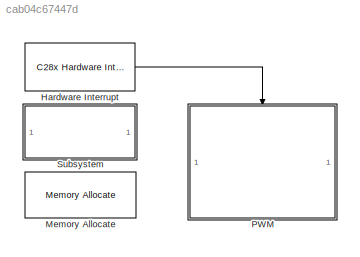
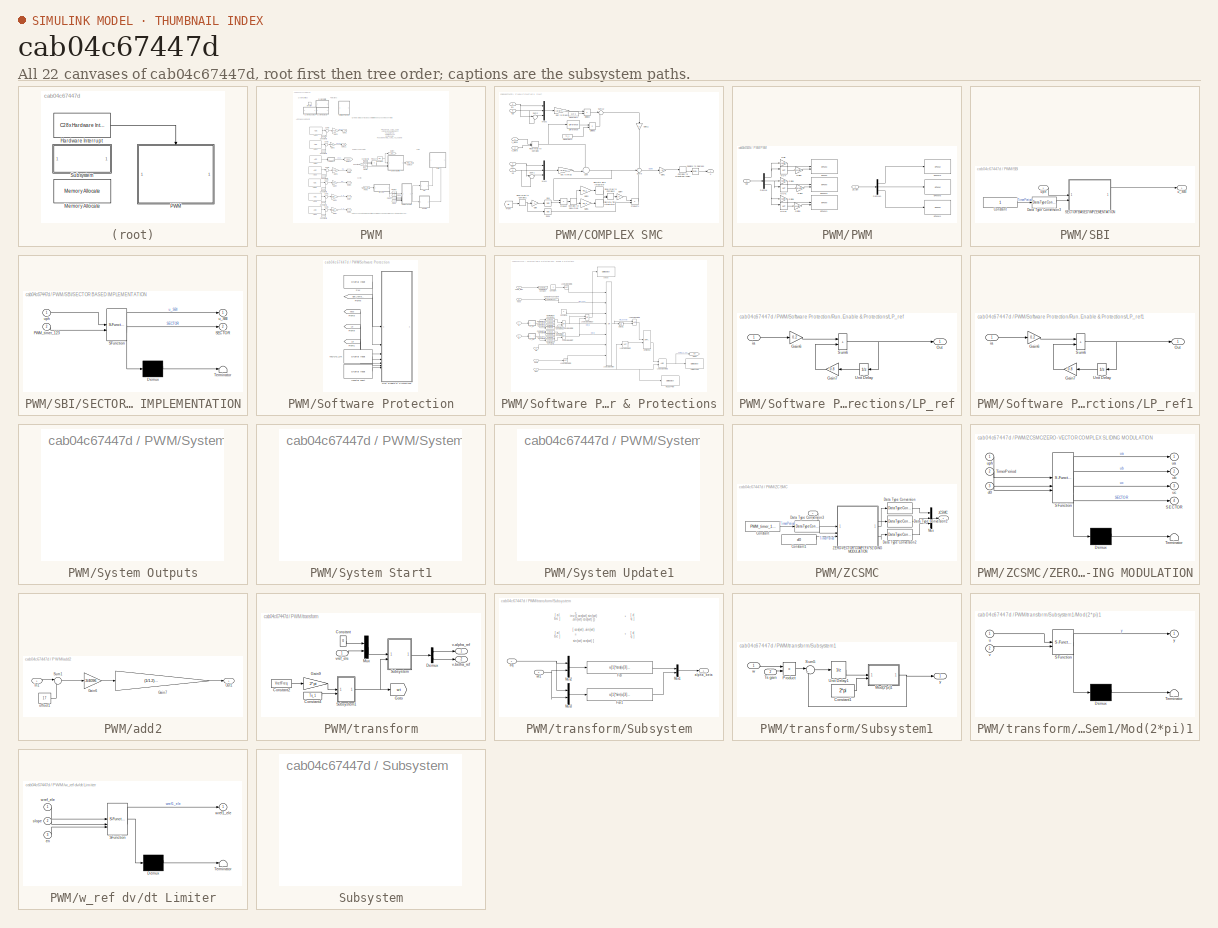
[diagram: thumbnail index - all 22 canvases of the model, root first then tree order]
MODEL slx_cab04c67447d
KIND model
CONFIG AbsTol = auto
CONFIG EnableMultiTasking = on
CONFIG FixedStep = auto
CONFIG InitFcn = iq_openloop = 2;\nvq_openloop = 0.1;\nSFOL = 1;\nFOL = 10;\nAlignment = 0;\nModulationStrategy = 1;\nDPWM1 = 1;\nDPWM2 = 1;\nda = 1;\ndb = 0;\ndc = 0;\nuab = 1;\nubc = 1;\niab = 1;\nibc = 1;\nswi = 1;\nwref_input = 100;
CONFIG MaxStep = auto
CONFIG MinStep = auto
CONFIG RelTol = 1e-3
CONFIG SampleTimeConstraint = Unconstrained
CONFIG SolverName = FixedStepAuto
CONFIG StartTime = 0.0
CONFIG StopTime = Inf
BLOCK [Reference] Hardware Interrupt  REF=c2000lib/Scheduling/C28x Hardware Interrupt
  NameLocation = top
  SourceBlock = c2000lib/Scheduling/C28x Hardware Interrupt
  SourceType = C28x Interrupt Block
BLOCK [Reference] Memory Allocate  REF=idelinklib_common/Memory Allocate
  SourceBlock = idelinklib_common/Memory Allocate
  SourceType = Memory Allocate
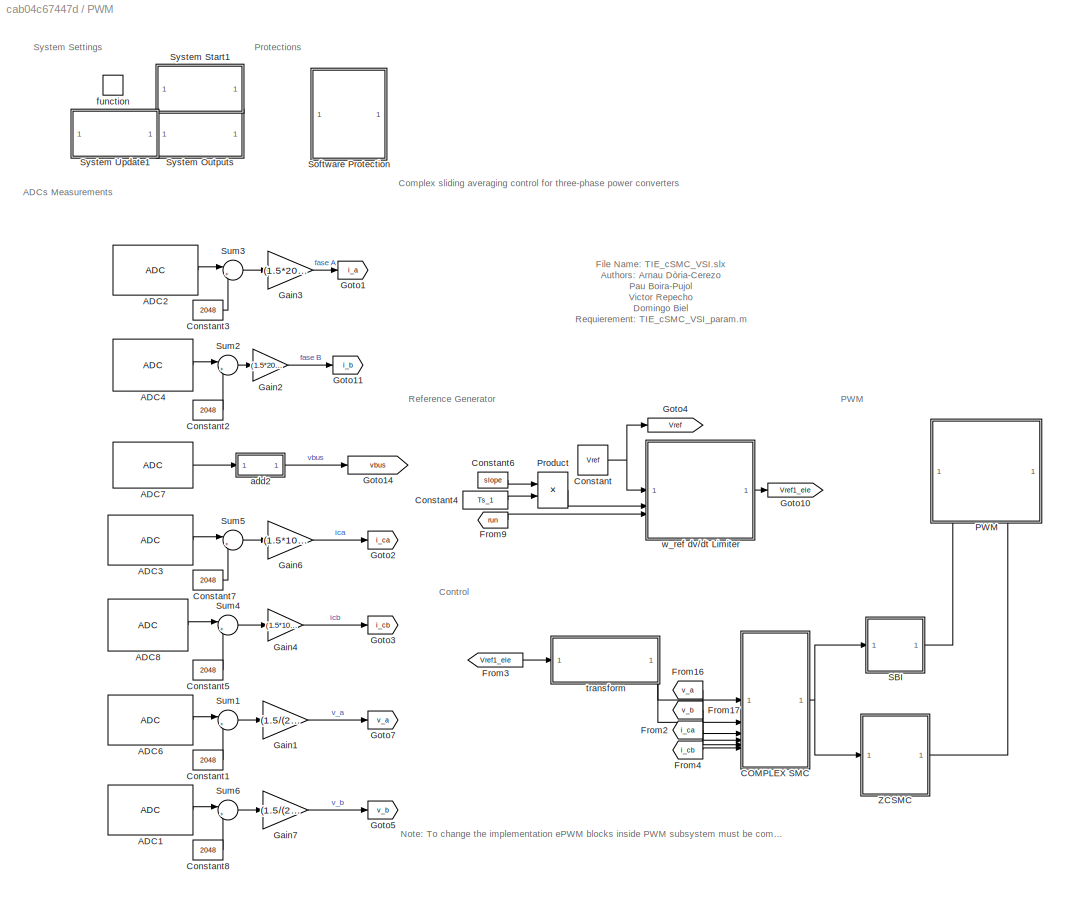
BLOCK [SubSystem] PWM
  TreatAsAtomicUnit = on
BLOCK [Reference] PWM/ADC1  REF=c2802xlib/ADC
  SourceBlock = c2802xlib/ADC
  SourceType = ADC Type 3-5
  UserDataPersistent = on
BLOCK [Reference] PWM/ADC2  REF=c2802xlib/ADC
  SourceBlock = c2802xlib/ADC
  SourceType = ADC Type 3-5
  UserDataPersistent = on
BLOCK [Reference] PWM/ADC3  REF=c2802xlib/ADC
  SourceBlock = c2802xlib/ADC
  SourceType = ADC Type 3-5
  UserDataPersistent = on
BLOCK [Reference] PWM/ADC4  REF=c2802xlib/ADC
  SourceBlock = c2802xlib/ADC
  SourceType = ADC Type 3-5
  UserDataPersistent = on
BLOCK [Reference] PWM/ADC6  REF=c2802xlib/ADC
  SourceBlock = c2802xlib/ADC
  SourceType = ADC Type 3-5
  UserDataPersistent = on
BLOCK [Reference] PWM/ADC7  REF=c2802xlib/ADC
  SourceBlock = c2802xlib/ADC
  SourceType = ADC Type 3-5
  UserDataPersistent = on
BLOCK [Reference] PWM/ADC8  REF=c2802xlib/ADC
  SourceBlock = c2802xlib/ADC
  SourceType = ADC Type 3-5
  UserDataPersistent = on
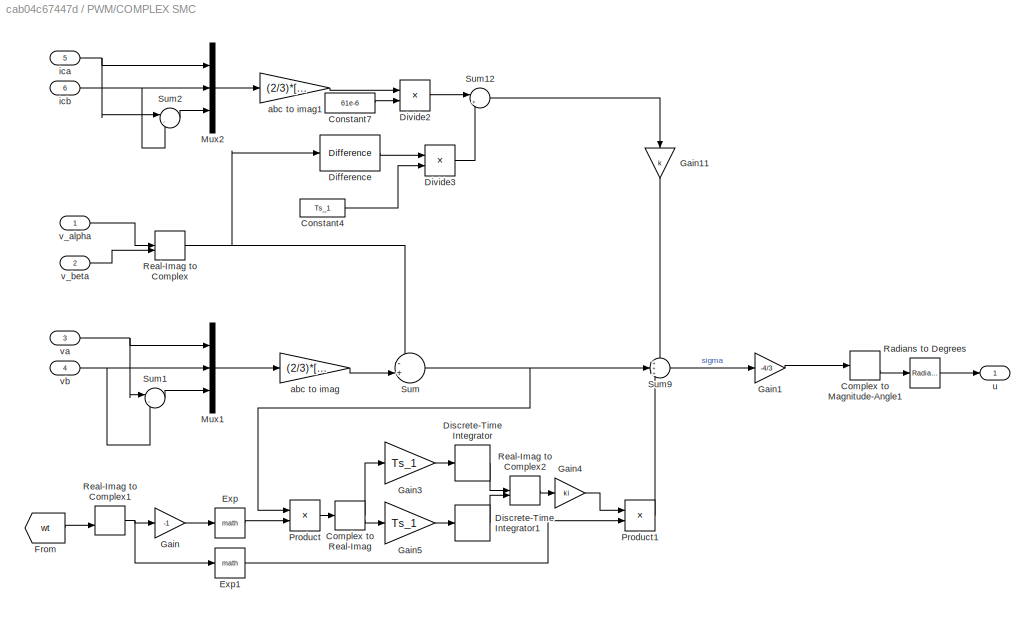
BLOCK [SubSystem] PWM/COMPLEX SMC
BLOCK [ComplexToMagnitudeAngle] PWM/COMPLEX SMC/Complex to Magnitude-Angle1
BLOCK [ComplexToRealImag] PWM/COMPLEX SMC/Complex to Real-Imag
BLOCK [Constant] PWM/COMPLEX SMC/Constant4
  OutDataTypeStr = single
  Value = Ts_1
BLOCK [Constant] PWM/COMPLEX SMC/Constant7
  OutDataTypeStr = single
  Value = 61e-6
BLOCK [Reference] PWM/COMPLEX SMC/Difference  REF=simulink/Discrete/Difference
  SourceBlock = simulink/Discrete/Difference
  SourceType = Difference
BLOCK [DiscreteIntegrator] PWM/COMPLEX SMC/Discrete-Time Integrator
  ICPrevOutput = DiscIntNeverNeededParam
  ICPrevScaledInput = DiscIntNeverNeededParam
  InitialConditionSetting = Auto
  IntegratorMethod = Accumulation: Forward Euler
  SampleTime = -1
BLOCK [DiscreteIntegrator] PWM/COMPLEX SMC/Discrete-Time Integrator1
  ICPrevOutput = DiscIntNeverNeededParam
  ICPrevScaledInput = DiscIntNeverNeededParam
  InitialConditionSetting = Auto
  IntegratorMethod = Accumulation: Forward Euler
  SampleTime = -1
BLOCK [Product] PWM/COMPLEX SMC/Divide2
  Inputs = */
BLOCK [Product] PWM/COMPLEX SMC/Divide3
  Inputs = */
BLOCK [Math] PWM/COMPLEX SMC/Exp
BLOCK [Math] PWM/COMPLEX SMC/Exp1
BLOCK [From] PWM/COMPLEX SMC/From
  GotoTag = wt
  TagVisibility = global
BLOCK [Gain] PWM/COMPLEX SMC/Gain
  Gain = -1
BLOCK [Gain] PWM/COMPLEX SMC/Gain1
  Gain = -4/3
BLOCK [Gain] PWM/COMPLEX SMC/Gain11
  Gain = k
  NameLocation = left
BLOCK [Gain] PWM/COMPLEX SMC/Gain3
  Gain = Ts_1
BLOCK [Gain] PWM/COMPLEX SMC/Gain4
  Gain = ki
BLOCK [Gain] PWM/COMPLEX SMC/Gain5
  Gain = Ts_1
BLOCK [Mux] PWM/COMPLEX SMC/Mux1
  DisplayOption = bar
  Inputs = 3
BLOCK [Mux] PWM/COMPLEX SMC/Mux2
  DisplayOption = bar
  Inputs = 3
BLOCK [Product] PWM/COMPLEX SMC/Product
BLOCK [Product] PWM/COMPLEX SMC/Product1
BLOCK [Reference] PWM/COMPLEX SMC/Radians to Degrees  REF=simulink_extras/Transformations/Radians
to Degrees
  SourceBlock = simulink_extras/Transformations/Radians\nto Degrees
  SourceType = RadiansToDegrees
BLOCK [RealImagToComplex] PWM/COMPLEX SMC/Real-Imag to Complex
BLOCK [RealImagToComplex] PWM/COMPLEX SMC/Real-Imag to Complex1
BLOCK [RealImagToComplex] PWM/COMPLEX SMC/Real-Imag to Complex2
BLOCK [Sum] PWM/COMPLEX SMC/Sum
  Inputs = -+|
BLOCK [Sum] PWM/COMPLEX SMC/Sum1
  Inputs = |--
BLOCK [Sum] PWM/COMPLEX SMC/Sum12
  AccumDataTypeStr = single
  Inputs = |+-
  OutDataTypeStr = single
BLOCK [Sum] PWM/COMPLEX SMC/Sum2
  Inputs = |--
BLOCK [Sum] PWM/COMPLEX SMC/Sum9
  AccumDataTypeStr = single
  Inputs = +++
  OutDataTypeStr = single
BLOCK [Gain] PWM/COMPLEX SMC/abc to imag
  Gain = (2/3)*[1,-0.5+1i*sqrt(3)/2,-0.5-1i*sqrt(3)/2]
  Multiplication = Matrix(K*u) (u vector)
BLOCK [Gain] PWM/COMPLEX SMC/abc to imag1
  Gain = (2/3)*[1,-0.5+1i*sqrt(3)/2,-0.5-1i*sqrt(3)/2]
  Multiplication = Matrix(K*u) (u vector)
BLOCK [Inport] PWM/COMPLEX SMC/ica
  Port = 5
BLOCK [Inport] PWM/COMPLEX SMC/icb
  Port = 6
BLOCK [Outport] PWM/COMPLEX SMC/u
BLOCK [Inport] PWM/COMPLEX SMC/v_alpha
BLOCK [Inport] PWM/COMPLEX SMC/v_beta
  Port = 2
BLOCK [Inport] PWM/COMPLEX SMC/va
  Port = 3
BLOCK [Inport] PWM/COMPLEX SMC/vb
  Port = 4
BLOCK [Constant] PWM/Constant
  OutDataTypeStr = single
  Value = Vref
BLOCK [Constant] PWM/Constant1
  OutDataTypeStr = single
  Value = 2048
BLOCK [Constant] PWM/Constant2
  OutDataTypeStr = single
  Value = 2048
BLOCK [Constant] PWM/Constant3
  OutDataTypeStr = single
  Value = 2048
BLOCK [Constant] PWM/Constant4
  OutDataTypeStr = single
  Value = Ts_1
BLOCK [Constant] PWM/Constant5
  OutDataTypeStr = single
  Value = 2048
BLOCK [Constant] PWM/Constant6
  OutDataTypeStr = single
  SampleTime = -1
  Value = slope
BLOCK [Constant] PWM/Constant7
  OutDataTypeStr = single
  Value = 2048
BLOCK [Constant] PWM/Constant8
  OutDataTypeStr = single
  Value = 2048
BLOCK [From] PWM/From16
  GotoTag = v_a
  TagVisibility = global
BLOCK [From] PWM/From17
  GotoTag = v_b
  TagVisibility = global
BLOCK [From] PWM/From2
  GotoTag = i_ca
  TagVisibility = global
BLOCK [From] PWM/From3
  GotoTag = Vref1_ele
  TagVisibility = global
BLOCK [From] PWM/From4
  GotoTag = i_cb
  TagVisibility = global
BLOCK [From] PWM/From9
  GotoTag = run
  TagVisibility = global
BLOCK [Gain] PWM/Gain1
  Gain = (1.5/(2048*0.6*8.2*(265/(265+6*47e3))))
  OutDataTypeStr = single
  RndMeth = Simplest
BLOCK [Gain] PWM/Gain2
  Gain = (1.5*2000/(2048*0.6*83))
  OutDataTypeStr = single
  RndMeth = Simplest
BLOCK [Gain] PWM/Gain3
  Gain = (1.5*2000/(2048*0.6*83))
  OutDataTypeStr = single
  RndMeth = Simplest
BLOCK [Gain] PWM/Gain4
  Gain = (1.5*1000/(2048*0.6*100))/2
  OutDataTypeStr = single
  RndMeth = Simplest
BLOCK [Gain] PWM/Gain6
  Gain = (1.5*1000/(2048*0.6*100))/2
  OutDataTypeStr = single
  RndMeth = Simplest
BLOCK [Gain] PWM/Gain7
  Gain = (1.5/(2048*0.6*8.2*(265/(265+6*47e3))))
  OutDataTypeStr = single
  RndMeth = Simplest
BLOCK [Goto] PWM/Goto1
  GotoTag = i_a
  TagVisibility = global
BLOCK [Goto] PWM/Goto10
  GotoTag = Vref1_ele
  TagVisibility = global
BLOCK [Goto] PWM/Goto11
  GotoTag = i_b
  TagVisibility = global
BLOCK [Goto] PWM/Goto14
  GotoTag = vbus
  TagVisibility = global
BLOCK [Goto] PWM/Goto2
  GotoTag = i_ca
  TagVisibility = global
BLOCK [Goto] PWM/Goto3
  GotoTag = i_cb
  TagVisibility = global
BLOCK [Goto] PWM/Goto4
  GotoTag = Vref
  TagVisibility = global
BLOCK [Goto] PWM/Goto5
  GotoTag = v_b
  TagVisibility = global
BLOCK [Goto] PWM/Goto7
  GotoTag = v_a
  TagVisibility = global
BLOCK [SubSystem] PWM/PWM
  PortSchema = {"entries":[{"content":{"sides":[{"content":{},"type":"ConnectorPlacement.EquallySpacedRectSide","uuid":"a5acabf5-e743-4773-bd0a-f39da237c21c"},{"content":{"side":"RIGHT"},"type":"ConnectorPlacement.EquallySpacedRectSide","uuid":"63dbd969-65f2-4854-aa43-6cc57aeb62a1"},{"content":{"side":"TOP"},"type":"ConnectorPlacement.EquallySpacedRectSide","uuid":"2315750b-b108-4f1f-8e88-2176e5b35533"},{"conten...<+331ch>
BLOCK [Demux] PWM/PWM/Demux
  Outputs = 3
BLOCK [Demux] PWM/PWM/Demux1
  Outputs = 3
BLOCK [Gain] PWM/PWM/Gain
  Gain = PWM_timer_123*2+2
  OutDataTypeStr = uint16
BLOCK [Gain] PWM/PWM/Gain5
  Gain = PWM_timer_123*2+2
  OutDataTypeStr = uint16
BLOCK [Gain] PWM/PWM/Gain6
  Gain = PWM_timer_123*2+2
  OutDataTypeStr = uint16
BLOCK [Gain] PWM/PWM/Gain7
  Gain = PWM_timer_123*2+2
  OutDataTypeStr = uint16
BLOCK [Gain] PWM/PWM/Gain8
  Gain = PWM_timer_123*2+2
  OutDataTypeStr = uint16
BLOCK [Gain] PWM/PWM/Gain9
  Gain = PWM_timer_123*2+2
  OutDataTypeStr = uint16
BLOCK [Logic] PWM/PWM/NOT
  AllPortsSameDT = off
  IconShape = distinctive
  Operator = NOT
  OutDataTypeStr = boolean
BLOCK [Logic] PWM/PWM/NOT1
  AllPortsSameDT = off
  IconShape = distinctive
  Operator = NOT
  OutDataTypeStr = boolean
BLOCK [Logic] PWM/PWM/NOT2
  AllPortsSameDT = off
  IconShape = distinctive
  Operator = NOT
  OutDataTypeStr = boolean
BLOCK [Inport] PWM/PWM/ZCSM
  Port = 2
BLOCK [Reference] PWM/PWM/ePWM  REF=c2802xlib/ePWM
  SourceBlock = c2802xlib/ePWM
  SourceType = ePWM Type 1-4
  UserDataPersistent = on
BLOCK [Reference] PWM/PWM/ePWM1  REF=c2802xlib/ePWM
  SourceBlock = c2802xlib/ePWM
  SourceType = ePWM Type 1-4
  UserDataPersistent = on
BLOCK [Reference] PWM/PWM/ePWM2  REF=c2802xlib/ePWM
  SourceBlock = c2802xlib/ePWM
  SourceType = ePWM Type 1-4
  UserDataPersistent = on
BLOCK [Reference] PWM/PWM/ePWM3  REF=c2802xlib/ePWM
  Commented = on
  SourceBlock = c2802xlib/ePWM
  SourceType = ePWM Type 1-4
  UserDataPersistent = on
BLOCK [Reference] PWM/PWM/ePWM4  REF=c2802xlib/ePWM
  Commented = on
  SourceBlock = c2802xlib/ePWM
  SourceType = ePWM Type 1-4
  UserDataPersistent = on
BLOCK [Reference] PWM/PWM/ePWM5  REF=c2802xlib/ePWM
  Commented = on
  SourceBlock = c2802xlib/ePWM
  SourceType = ePWM Type 1-4
  UserDataPersistent = on
BLOCK [Inport] PWM/PWM/sbi
BLOCK [Product] PWM/Product
BLOCK [SubSystem] PWM/SBI
BLOCK [Constant] PWM/SBI/Constant
  OutDataTypeStr = uint16
BLOCK [DataTypeConversion] PWM/SBI/Data Type Conversion3
  Commented = through
  OutDataTypeStr = single
  SaturateOnIntegerOverflow = off
BLOCK [SubSystem] PWM/SBI/SECTOR BASED IMPLEMENTATION
  ErrorFcn = Stateflow.Translate.translate
  LibrarySourceBlock = simulink/User-Defined\nFunctions/MATLAB Function
  PermitHierarchicalResolution = ExplicitOnly
  SFBlockType = MATLAB Function
  TreatAsAtomicUnit = on
BLOCK [Demux] PWM/SBI/SECTOR BASED IMPLEMENTATION/ Demux 
  Outputs = 1
BLOCK [S-Function] PWM/SBI/SECTOR BASED IMPLEMENTATION/ SFunction 
  EnableBusSupport = on
  FunctionName = sf_sfun
  PortCounts = [2 3]
  SFcnIsStateOwnerBlock = off
  SFunctionDeploymentMode = off
  Tag = Stateflow S-Function 1
BLOCK [Terminator] PWM/SBI/SECTOR BASED IMPLEMENTATION/ Terminator 
BLOCK [Inport] PWM/SBI/SECTOR BASED IMPLEMENTATION/PWM_timer_123
  Port = 2
BLOCK [Outport] PWM/SBI/SECTOR BASED IMPLEMENTATION/SECTOR
  Port = 2
BLOCK [Outport] PWM/SBI/SECTOR BASED IMPLEMENTATION/u_SBI
BLOCK [Inport] PWM/SBI/SECTOR BASED IMPLEMENTATION/uph
BLOCK [Outport] PWM/SBI/u_SBI
  NameLocation = top
BLOCK [Inport] PWM/SBI/uph
BLOCK [SubSystem] PWM/Software Protection
BLOCK [From] PWM/Software Protection/From1
  GotoTag = i_b
  TagVisibility = global
BLOCK [From] PWM/Software Protection/From3
  GotoTag = vbus
  TagVisibility = global
BLOCK [From] PWM/Software Protection/From5
  Commented = on
  GotoTag = igbt_temp_F
  TagVisibility = global
BLOCK [From] PWM/Software Protection/From9
  GotoTag = i_a
  TagVisibility = global
BLOCK [Reference] PWM/Software Protection/Inverter Fault  REF=c2837xDlib/Digital Input
  SourceBlock = c2837xDlib/Digital Input
  SourceType = F2837x GPIO Digital Input
  UserDataPersistent = on
BLOCK [SubSystem] PWM/Software Protection/Run. Enable & Protections
  NameLocation = top
BLOCK [Reference] PWM/Software Protection/Run. Enable & Protections/Compare To Constant  REF=simulink/Logic and Bit
Operations/Compare
To Constant
  Commented = on
  SourceBlock = simulink/Logic and Bit\nOperations/Compare\nTo Constant
  SourceType = Compare To Constant
BLOCK [Reference] PWM/Software Protection/Run. Enable & Protections/Compare To Constant1  REF=simulink/Logic and Bit
Operations/Compare
To Constant
  SourceBlock = simulink/Logic and Bit\nOperations/Compare\nTo Constant
  SourceType = Compare To Constant
BLOCK [Reference] PWM/Software Protection/Run. Enable & Protections/Compare To Constant10  REF=simulink/Logic and Bit
Operations/Compare
To Constant
  SourceBlock = simulink/Logic and Bit\nOperations/Compare\nTo Constant
  SourceType = Compare To Constant
BLOCK [Reference] PWM/Software Protection/Run. Enable & Protections/Compare To Constant11  REF=simulink/Logic and Bit
Operations/Compare
To Constant
  SourceBlock = simulink/Logic and Bit\nOperations/Compare\nTo Constant
  SourceType = Compare To Constant
BLOCK [Reference] PWM/Software Protection/Run. Enable & Protections/Compare To Constant3  REF=simulink/Logic and Bit
Operations/Compare
To Constant
  SourceBlock = simulink/Logic and Bit\nOperations/Compare\nTo Constant
  SourceType = Compare To Constant
BLOCK [Reference] PWM/Software Protection/Run. Enable & Protections/Compare To Constant4  REF=simulink/Logic and Bit
Operations/Compare
To Constant
  SourceBlock = simulink/Logic and Bit\nOperations/Compare\nTo Constant
  SourceType = Compare To Constant
BLOCK [Reference] PWM/Software Protection/Run. Enable & Protections/Compare To Constant5  REF=simulink/Logic and Bit
Operations/Compare
To Constant
  SourceBlock = simulink/Logic and Bit\nOperations/Compare\nTo Constant
  SourceType = Compare To Constant
BLOCK [Reference] PWM/Software Protection/Run. Enable & Protections/Compare To Constant7  REF=simulink/Logic and Bit
Operations/Compare
To Constant
  SourceBlock = simulink/Logic and Bit\nOperations/Compare\nTo Constant
  SourceType = Compare To Constant
BLOCK [Reference] PWM/Software Protection/Run. Enable & Protections/Compare To Constant8  REF=simulink/Logic and Bit
Operations/Compare
To Constant
  SourceBlock = simulink/Logic and Bit\nOperations/Compare\nTo Constant
  SourceType = Compare To Constant
BLOCK [Reference] PWM/Software Protection/Run. Enable & Protections/Compare To Constant9  REF=simulink/Logic and Bit
Operations/Compare
To Constant
  SourceBlock = simulink/Logic and Bit\nOperations/Compare\nTo Constant
  SourceType = Compare To Constant
BLOCK [Constant] PWM/Software Protection/Run. Enable & Protections/Constant
  OutDataTypeStr = boolean
BLOCK [Constant] PWM/Software Protection/Run. Enable & Protections/Constant1
  OutDataTypeStr = boolean
  Value = 0
BLOCK [Inport] PWM/Software Protection/Run. Enable & Protections/Fault
  Port = 7
BLOCK [Goto] PWM/Software Protection/Run. Enable & Protections/Goto6
  GotoTag = run
  TagVisibility = global
BLOCK [SubSystem] PWM/Software Protection/Run. Enable & Protections/LP_ref
BLOCK [Gain] PWM/Software Protection/Run. Enable & Protections/LP_ref/Gain6
  Gain = 0.2
  OutDataTypeStr = single
  ParamDataTypeStr = single
  RndMeth = Zero
BLOCK [Gain] PWM/Software Protection/Run. Enable & Protections/LP_ref/Gain7
  Gain = 0.8
  NameLocation = top
  OutDataTypeStr = single
  ParamDataTypeStr = single
  RndMeth = Zero
BLOCK [Outport] PWM/Software Protection/Run. Enable & Protections/LP_ref/Out
  VectorParamsAs1DForOutWhenUnconnected = off
BLOCK [Sum] PWM/Software Protection/Run. Enable & Protections/LP_ref/Sum6
  AccumDataTypeStr = single
  IconShape = rectangular
  OutDataTypeStr = int32
  RndMeth = Zero
BLOCK [UnitDelay] PWM/Software Protection/Run. Enable & Protections/LP_ref/Unit Delay
  HasFrameUpgradeWarning = on
  NameLocation = top
  SampleTime = -1
BLOCK [Inport] PWM/Software Protection/Run. Enable & Protections/LP_ref/ia
BLOCK [SubSystem] PWM/Software Protection/Run. Enable & Protections/LP_ref1
BLOCK [Gain] PWM/Software Protection/Run. Enable & Protections/LP_ref1/Gain6
  Gain = 0.2
  OutDataTypeStr = single
  ParamDataTypeStr = single
  RndMeth = Zero
BLOCK [Gain] PWM/Software Protection/Run. Enable & Protections/LP_ref1/Gain7
  Gain = 0.8
  NameLocation = top
  OutDataTypeStr = single
  ParamDataTypeStr = single
  RndMeth = Zero
BLOCK [Outport] PWM/Software Protection/Run. Enable & Protections/LP_ref1/Out
  VectorParamsAs1DForOutWhenUnconnected = off
BLOCK [Sum] PWM/Software Protection/Run. Enable & Protections/LP_ref1/Sum6
  AccumDataTypeStr = single
  IconShape = rectangular
  OutDataTypeStr = int32
  RndMeth = Zero
BLOCK [UnitDelay] PWM/Software Protection/Run. Enable & Protections/LP_ref1/Unit Delay
  HasFrameUpgradeWarning = on
  NameLocation = top
  SampleTime = -1
BLOCK [Inport] PWM/Software Protection/Run. Enable & Protections/LP_ref1/ia
BLOCK [Logic] PWM/Software Protection/Run. Enable & Protections/Logical Operator
  AllPortsSameDT = off
  Inputs = 7
  Operator = OR
  OutDataTypeStr = boolean
BLOCK [Logic] PWM/Software Protection/Run. Enable & Protections/Logical Operator1
  AllPortsSameDT = off
  OutDataTypeStr = boolean
BLOCK [Logic] PWM/Software Protection/Run. Enable & Protections/Logical Operator10
  AllPortsSameDT = off
  Operator = OR
  OutDataTypeStr = boolean
BLOCK [Logic] PWM/Software Protection/Run. Enable & Protections/Logical Operator2
  AllPortsSameDT = off
  Inputs = 1
  Operator = NOT
  OutDataTypeStr = boolean
BLOCK [Logic] PWM/Software Protection/Run. Enable & Protections/Logical Operator3
  AllPortsSameDT = off
  Inputs = 1
  Operator = NOT
  OutDataTypeStr = boolean
BLOCK [Logic] PWM/Software Protection/Run. Enable & Protections/Logical Operator4
  AllPortsSameDT = off
  OutDataTypeStr = boolean
BLOCK [Logic] PWM/Software Protection/Run. Enable & Protections/Logical Operator5
  AllPortsSameDT = off
  Inputs = 1
  Operator = NOT
  OutDataTypeStr = boolean
BLOCK [Logic] PWM/Software Protection/Run. Enable & Protections/Logical Operator6
  AllPortsSameDT = off
  Operator = OR
  OutDataTypeStr = boolean
BLOCK [Logic] PWM/Software Protection/Run. Enable & Protections/Logical Operator7
  AllPortsSameDT = off
  Operator = OR
  OutDataTypeStr = boolean
BLOCK [UnitDelay] PWM/Software Protection/Run. Enable & Protections/Output1
  HasFrameUpgradeWarning = on
  SampleTime = -1
BLOCK [Reference] PWM/Software Protection/Run. Enable & Protections/PWM123 EN  REF=c2837xDlib/Digital Output
  SourceBlock = c2837xDlib/Digital Output
  SourceType = F2837x GPIO Digital Output
  UserDataPersistent = on
BLOCK [Reference] PWM/Software Protection/Run. Enable & Protections/RESET PWM  REF=c2837xDlib/Digital Output
  SourceBlock = c2837xDlib/Digital Output
  SourceType = F2837x GPIO Digital Output
  UserDataPersistent = on
BLOCK [Inport] PWM/Software Protection/Run. Enable & Protections/Run
BLOCK [Reference] PWM/Software Protection/Run. Enable & Protections/S-R Flip-Flop  REF=simulink_extras/Flip Flops/S-R
Flip-Flop
  SourceBlock = simulink_extras/Flip Flops/S-R\nFlip-Flop
  SourceType = SRFlipFlop
BLOCK [Inport] PWM/Software Protection/Run. Enable & Protections/Temp_IGBT
  NameLocation = top
  Port = 2
BLOCK [Reference] PWM/Software Protection/Run. Enable & Protections/check  REF=c2837xDlib/Digital Output
  SourceBlock = c2837xDlib/Digital Output
  SourceType = F2837x GPIO Digital Output
  UserDataPersistent = on
BLOCK [Inport] PWM/Software Protection/Run. Enable & Protections/ia
  Port = 4
BLOCK [Inport] PWM/Software Protection/Run. Enable & Protections/ib
  Port = 5
BLOCK [Inport] PWM/Software Protection/Run. Enable & Protections/vbus
  Port = 3
BLOCK [Inport] PWM/Software Protection/Run. Enable & Protections/wd
  Port = 6
BLOCK [Reference] PWM/Software Protection/SW   REF=c2837xDlib/Digital Input
  SourceBlock = c2837xDlib/Digital Input
  SourceType = F2837x GPIO Digital Input
  UserDataPersistent = on
BLOCK [Reference] PWM/Software Protection/WDOG_OK  REF=c2837xDlib/Digital Input
  SourceBlock = c2837xDlib/Digital Input
  SourceType = F2837x GPIO Digital Input
  UserDataPersistent = on
BLOCK [Sum] PWM/Sum1
  AccumDataTypeStr = single
  Inputs = |+-
  OutDataTypeStr = single
  RndMeth = Simplest
BLOCK [Sum] PWM/Sum2
  AccumDataTypeStr = single
  Inputs = |+-
  OutDataTypeStr = single
  RndMeth = Simplest
BLOCK [Sum] PWM/Sum3
  AccumDataTypeStr = single
  Inputs = |+-
  OutDataTypeStr = single
  RndMeth = Simplest
BLOCK [Sum] PWM/Sum4
  AccumDataTypeStr = single
  Inputs = |+-
  OutDataTypeStr = single
  RndMeth = Simplest
BLOCK [Sum] PWM/Sum5
  AccumDataTypeStr = single
  Inputs = |+-
  OutDataTypeStr = single
  RndMeth = Simplest
BLOCK [Sum] PWM/Sum6
  AccumDataTypeStr = single
  Inputs = |+-
  OutDataTypeStr = single
  RndMeth = Simplest
BLOCK [SubSystem] PWM/System Outputs
  CopyFcn = cccopyfcn(gcb)
  OpenFcn = ccopenfcn('System Outputs Function')
BLOCK [SubSystem] PWM/System Start1
  CopyFcn = cccopyfcn(gcb)
  OpenFcn = ccopenfcn('System Start Function')
BLOCK [SubSystem] PWM/System Update1
  CopyFcn = cccopyfcn(gcb)
  OpenFcn = ccopenfcn('System Update Function')
BLOCK [SubSystem] PWM/ZCSMC
BLOCK [Constant] PWM/ZCSMC/Constant
  Value = PWM_timer_123
BLOCK [Constant] PWM/ZCSMC/Constant1
  OutDataTypeStr = single
  Value = d0
BLOCK [DataTypeConversion] PWM/ZCSMC/Data Type Conversion
  OutDataTypeStr = uint16
  SaturateOnIntegerOverflow = off
BLOCK [DataTypeConversion] PWM/ZCSMC/Data Type Conversion1
  OutDataTypeStr = uint16
  SaturateOnIntegerOverflow = off
BLOCK [DataTypeConversion] PWM/ZCSMC/Data Type Conversion2
  OutDataTypeStr = uint16
  SaturateOnIntegerOverflow = off
BLOCK [DataTypeConversion] PWM/ZCSMC/Data Type Conversion3
  OutDataTypeStr = single
  SaturateOnIntegerOverflow = off
BLOCK [Mux] PWM/ZCSMC/Mux
  DisplayOption = bar
  Inputs = 3
BLOCK [SubSystem] PWM/ZCSMC/ZERO-VECTOR COMPLEX SLIDING MODULATION
  ErrorFcn = Stateflow.Translate.translate
  LibrarySourceBlock = simulink/User-Defined\nFunctions/MATLAB Function
  PermitHierarchicalResolution = ExplicitOnly
  SFBlockType = MATLAB Function
  TreatAsAtomicUnit = on
BLOCK [Demux] PWM/ZCSMC/ZERO-VECTOR COMPLEX SLIDING MODULATION/ Demux 
  Outputs = 1
BLOCK [S-Function] PWM/ZCSMC/ZERO-VECTOR COMPLEX SLIDING MODULATION/ SFunction 
  EnableBusSupport = on
  FunctionName = sf_sfun
  PortCounts = [3 5]
  SFcnIsStateOwnerBlock = off
  SFunctionDeploymentMode = off
  Tag = Stateflow S-Function 10
BLOCK [Terminator] PWM/ZCSMC/ZERO-VECTOR COMPLEX SLIDING MODULATION/ Terminator 
BLOCK [Outport] PWM/ZCSMC/ZERO-VECTOR COMPLEX SLIDING MODULATION/SECTOR
  Port = 4
BLOCK [Inport] PWM/ZCSMC/ZERO-VECTOR COMPLEX SLIDING MODULATION/TimerPeriod
  Port = 2
BLOCK [Inport] PWM/ZCSMC/ZERO-VECTOR COMPLEX SLIDING MODULATION/d0
  Port = 3
BLOCK [Outport] PWM/ZCSMC/ZERO-VECTOR COMPLEX SLIDING MODULATION/ua
BLOCK [Outport] PWM/ZCSMC/ZERO-VECTOR COMPLEX SLIDING MODULATION/ub
  Port = 2
BLOCK [Outport] PWM/ZCSMC/ZERO-VECTOR COMPLEX SLIDING MODULATION/uc
  Port = 3
BLOCK [Inport] PWM/ZCSMC/ZERO-VECTOR COMPLEX SLIDING MODULATION/uph
BLOCK [Inport] PWM/ZCSMC/uph
BLOCK [Outport] PWM/ZCSMC/zCSMC
BLOCK [SubSystem] PWM/add2
BLOCK [Gain] PWM/add2/Gain6
  Gain = 3/4096
  OutDataTypeStr = single
  ParamDataTypeStr = single
BLOCK [Gain] PWM/add2/Gain7
  Gain = (1/1.2)*(1/8.2)*(282000+139)*1.11/139
  OutDataTypeStr = single
  ParamDataTypeStr = single
BLOCK [Inport] PWM/add2/In1
BLOCK [Outport] PWM/add2/Out1
  VectorParamsAs1DForOutWhenUnconnected = off
BLOCK [Sum] PWM/add2/Sum1
  AccumDataTypeStr = single
  Inputs = |+-
  OutDataTypeStr = single
BLOCK [Constant] PWM/add2/offset1
  OutDataTypeStr = single
  Value = 17
BLOCK [TriggerPort] PWM/function
  StatesWhenEnabling = held
  TriggerType = function-call
  VariantControl = (inherit)
BLOCK [SubSystem] PWM/transform
BLOCK [Constant] PWM/transform/Constant
  OutDataTypeStr = single
  Value = 0
BLOCK [Constant] PWM/transform/Constant2
  OutDataTypeStr = single
  Value = VrefFreq
BLOCK [Constant] PWM/transform/Constant4
  OutDataTypeStr = single
  Value = Ts_1
BLOCK [Demux] PWM/transform/Demux
  Outputs = 2
BLOCK [Gain] PWM/transform/Gain9
  Gain = 2*pi
  OutDataTypeStr = single
BLOCK [Goto] PWM/transform/Goto
  GotoTag = wt
  TagVisibility = global
BLOCK [Mux] PWM/transform/Mux
  DisplayOption = bar
  Inputs = 2
BLOCK [SubSystem] PWM/transform/Subsystem
BLOCK [Fcn] PWM/transform/Subsystem/Fcn
  Expr = u[1]*cos(u[3]) - u[2]*sin(u[3])
BLOCK [Fcn] PWM/transform/Subsystem/Fcn1
  Expr = u[1]*sin(u[3]) + u[2]*cos(u[3])
BLOCK [Mux] PWM/transform/Subsystem/Mux1
  DisplayOption = bar
  Inputs = 2
BLOCK [Mux] PWM/transform/Subsystem/Mux2
  DisplayOption = bar
  Inputs = [2 1]
BLOCK [Mux] PWM/transform/Subsystem/Mux3
  DisplayOption = bar
  Inputs = [2 1]
BLOCK [Outport] PWM/transform/Subsystem/alpha_beta
  InitialOutput = [0,0]
  VectorParamsAs1DForOutWhenUnconnected = off
BLOCK [Inport] PWM/transform/Subsystem/dq
  PortDimensions = 2
BLOCK [Inport] PWM/transform/Subsystem/wt1
  Port = 2
  PortDimensions = 1
BLOCK [SubSystem] PWM/transform/Subsystem1
BLOCK [Constant] PWM/transform/Subsystem1/Constant1
  OutDataTypeStr = single
  Value = 2*pi
  VectorParams1D = off
BLOCK [SubSystem] PWM/transform/Subsystem1/Mod(2*pi)1
  ErrorFcn = Stateflow.Translate.translate
  PermitHierarchicalResolution = ExplicitOnly
  SFBlockType = MATLAB Function
  TreatAsAtomicUnit = on
BLOCK [Demux] PWM/transform/Subsystem1/Mod(2*pi)1/ Demux 
  Outputs = 1
BLOCK [S-Function] PWM/transform/Subsystem1/Mod(2*pi)1/ SFunction 
  EnableBusSupport = on
  FunctionName = sf_sfun
  PortCounts = [2 2]
  SFcnIsStateOwnerBlock = off
  SFunctionDeploymentMode = off
  Tag = Stateflow S-Function 2
BLOCK [Terminator] PWM/transform/Subsystem1/Mod(2*pi)1/ Terminator 
BLOCK [Inport] PWM/transform/Subsystem1/Mod(2*pi)1/u
BLOCK [Inport] PWM/transform/Subsystem1/Mod(2*pi)1/v
  Port = 2
BLOCK [Outport] PWM/transform/Subsystem1/Mod(2*pi)1/y
BLOCK [Product] PWM/transform/Subsystem1/Product
  OutDataTypeStr = single
BLOCK [Sum] PWM/transform/Subsystem1/Sum5
  Inputs = |++
BLOCK [Inport] PWM/transform/Subsystem1/Ts gain
  OutDataTypeStr = single
  Port = 2
BLOCK [UnitDelay] PWM/transform/Subsystem1/Unit Delay1
  NameLocation = top
  SampleTime = -1
BLOCK [Inport] PWM/transform/Subsystem1/w
BLOCK [Outport] PWM/transform/Subsystem1/y
  OutDataTypeStr = single
BLOCK [Outport] PWM/transform/v-alpha_ref
  VectorParamsAs1DForOutWhenUnconnected = off
BLOCK [Outport] PWM/transform/v-betha_ref
  Port = 2
  VectorParamsAs1DForOutWhenUnconnected = off
BLOCK [Inport] PWM/transform/vref_ele
BLOCK [SubSystem] PWM/w_ref dv//dt Limiter
  ErrorFcn = Stateflow.Translate.translate
  PermitHierarchicalResolution = ExplicitOnly
  RTWSystemCode = Inline
  SFBlockType = MATLAB Function
  TreatAsAtomicUnit = on
BLOCK [Demux] PWM/w_ref dv//dt Limiter/ Demux 
  Outputs = 1
BLOCK [S-Function] PWM/w_ref dv//dt Limiter/ SFunction 
  EnableBusSupport = on
  FunctionName = sf_sfun
  PortCounts = [3 2]
  SFcnIsStateOwnerBlock = off
  SFunctionDeploymentMode = off
  Tag = Stateflow S-Function 7
BLOCK [Terminator] PWM/w_ref dv//dt Limiter/ Terminator 
BLOCK [Inport] PWM/w_ref dv//dt Limiter/en
  Port = 3
BLOCK [Inport] PWM/w_ref dv//dt Limiter/slope
  Port = 2
BLOCK [Outport] PWM/w_ref dv//dt Limiter/wref1_ele
  VectorParamsAs1DForOutWhenUnconnected = off
BLOCK [Inport] PWM/w_ref dv//dt Limiter/wref_ele
BLOCK [SubSystem] Subsystem
  OpenFcn = FOC_PWM_NISSAN_F28379D_DATA
ANNOTATION PWM: Complex sliding averaging control for three-phase power converters
ANNOTATION PWM: File Name: TIE_cSMC_VSI.slx Authors: Arnau Dòria-Cerezo Pau Boira-Pujol Victor Repecho Domingo Biel Requierement: TIE_cSMC_VSI_param.m Last Update: 03/03/2025
ANNOTATION PWM: Note: To change the implementation ePWM blocks inside PWM subsystem must be commented/uncommented.
ANNOTATION PWM: ADCs Measurements
ANNOTATION PWM: Control
ANNOTATION PWM: PWM
ANNOTATION PWM: Protections
ANNOTATION PWM: Reference Generator
ANNOTATION PWM: System Settings
ANNOTATION PWM/transform/Subsystem: [ al be ]
ANNOTATION PWM/transform/Subsystem: [ cos(wt) -sin(wt) sin(wt) cos(wt) ]
ANNOTATION PWM/transform/Subsystem: [ d q ]
ANNOTATION PWM/transform/Subsystem: inv ([ cos(wt) sin(wt) -sin(wt) cos(wt) ])
ANNOTATION PWM/transform/Subsystem: *
ANNOTATION PWM/transform/Subsystem: =
LINE Hardware Interrupt:1 -> PWM:trigger
LINE PWM/ADC1:1 -> PWM/Sum6:1
LINE PWM/ADC2:1 -> PWM/Sum3:1
LINE PWM/ADC3:1 -> PWM/Sum5:1
LINE PWM/ADC4:1 -> PWM/Sum2:1
LINE PWM/ADC6:1 -> PWM/Sum1:1
LINE PWM/ADC7:1 -> PWM/add2:1
LINE PWM/ADC8:1 -> PWM/Sum4:1
LINE PWM/COMPLEX SMC/Complex to Magnitude-Angle1:2 -> PWM/COMPLEX SMC/Radians to Degrees:1
LINE PWM/COMPLEX SMC/Complex to Real-Imag:1 -> PWM/COMPLEX SMC/Gain3:1
LINE PWM/COMPLEX SMC/Complex to Real-Imag:2 -> PWM/COMPLEX SMC/Gain5:1
LINE PWM/COMPLEX SMC/Constant4:1 -> PWM/COMPLEX SMC/Divide3:2
LINE PWM/COMPLEX SMC/Constant7:1 -> PWM/COMPLEX SMC/Divide2:2
LINE PWM/COMPLEX SMC/Difference:1 -> PWM/COMPLEX SMC/Divide3:1
LINE PWM/COMPLEX SMC/Discrete-Time Integrator1:1 -> PWM/COMPLEX SMC/Real-Imag to Complex2:2
LINE PWM/COMPLEX SMC/Discrete-Time Integrator:1 -> PWM/COMPLEX SMC/Real-Imag to Complex2:1
LINE PWM/COMPLEX SMC/Divide2:1 -> PWM/COMPLEX SMC/Sum12:1
LINE PWM/COMPLEX SMC/Divide3:1 -> PWM/COMPLEX SMC/Sum12:2
LINE PWM/COMPLEX SMC/Exp1:1 -> PWM/COMPLEX SMC/Product1:2
LINE PWM/COMPLEX SMC/Exp:1 -> PWM/COMPLEX SMC/Product:2
LINE PWM/COMPLEX SMC/From:1 -> PWM/COMPLEX SMC/Real-Imag to Complex1:2
LINE PWM/COMPLEX SMC/Gain11:1 -> PWM/COMPLEX SMC/Sum9:1
LINE PWM/COMPLEX SMC/Gain1:1 -> PWM/COMPLEX SMC/Complex to Magnitude-Angle1:1
LINE PWM/COMPLEX SMC/Gain3:1 -> PWM/COMPLEX SMC/Discrete-Time Integrator:1
LINE PWM/COMPLEX SMC/Gain4:1 -> PWM/COMPLEX SMC/Product1:1
LINE PWM/COMPLEX SMC/Gain5:1 -> PWM/COMPLEX SMC/Discrete-Time Integrator1:1
LINE PWM/COMPLEX SMC/Gain:1 -> PWM/COMPLEX SMC/Exp:1
LINE PWM/COMPLEX SMC/Mux1:1 -> PWM/COMPLEX SMC/abc to imag:1
LINE PWM/COMPLEX SMC/Mux2:1 -> PWM/COMPLEX SMC/abc to imag1:1
LINE PWM/COMPLEX SMC/Product1:1 -> PWM/COMPLEX SMC/Sum9:3
LINE PWM/COMPLEX SMC/Product:1 -> PWM/COMPLEX SMC/Complex to Real-Imag:1
LINE PWM/COMPLEX SMC/Radians to Degrees:1 -> PWM/COMPLEX SMC/u:1
NET PWM/COMPLEX SMC/Real-Imag to Complex1:1 -> PWM/COMPLEX SMC/Exp1:1, PWM/COMPLEX SMC/Gain:1
LINE PWM/COMPLEX SMC/Real-Imag to Complex2:1 -> PWM/COMPLEX SMC/Gain4:1
NET PWM/COMPLEX SMC/Real-Imag to Complex:1 -> PWM/COMPLEX SMC/Difference:1, PWM/COMPLEX SMC/Sum:1
LINE PWM/COMPLEX SMC/Sum12:1 -> PWM/COMPLEX SMC/Gain11:1
LINE PWM/COMPLEX SMC/Sum1:1 -> PWM/COMPLEX SMC/Mux1:3
LINE PWM/COMPLEX SMC/Sum2:1 -> PWM/COMPLEX SMC/Mux2:3
LINE PWM/COMPLEX SMC/Sum9:1 -> PWM/COMPLEX SMC/Gain1:1
NET PWM/COMPLEX SMC/Sum:1 -> PWM/COMPLEX SMC/Product:1, PWM/COMPLEX SMC/Sum9:2
LINE PWM/COMPLEX SMC/abc to imag1:1 -> PWM/COMPLEX SMC/Divide2:1
LINE PWM/COMPLEX SMC/abc to imag:1 -> PWM/COMPLEX SMC/Sum:2
NET PWM/COMPLEX SMC/ica:1 -> PWM/COMPLEX SMC/Mux2:1, PWM/COMPLEX SMC/Sum2:1
NET PWM/COMPLEX SMC/icb:1 -> PWM/COMPLEX SMC/Mux2:2, PWM/COMPLEX SMC/Sum2:2
LINE PWM/COMPLEX SMC/v_alpha:1 -> PWM/COMPLEX SMC/Real-Imag to Complex:1
LINE PWM/COMPLEX SMC/v_beta:1 -> PWM/COMPLEX SMC/Real-Imag to Complex:2
NET PWM/COMPLEX SMC/va:1 -> PWM/COMPLEX SMC/Mux1:1, PWM/COMPLEX SMC/Sum1:1
NET PWM/COMPLEX SMC/vb:1 -> PWM/COMPLEX SMC/Mux1:2, PWM/COMPLEX SMC/Sum1:2
NET PWM/COMPLEX SMC:1 -> PWM/SBI:1, PWM/ZCSMC:1
LINE PWM/Constant1:1 -> PWM/Sum1:2
LINE PWM/Constant2:1 -> PWM/Sum2:2
LINE PWM/Constant3:1 -> PWM/Sum3:2
LINE PWM/Constant4:1 -> PWM/Product:2
LINE PWM/Constant5:1 -> PWM/Sum4:2
LINE PWM/Constant6:1 -> PWM/Product:1
LINE PWM/Constant7:1 -> PWM/Sum5:2
LINE PWM/Constant8:1 -> PWM/Sum6:2
NET PWM/Constant:1 -> PWM/Goto4:1, PWM/w_ref dv//dt Limiter:1
LINE PWM/From16:1 -> PWM/COMPLEX SMC:3
LINE PWM/From17:1 -> PWM/COMPLEX SMC:4
LINE PWM/From2:1 -> PWM/COMPLEX SMC:5
LINE PWM/From3:1 -> PWM/transform:1
LINE PWM/From4:1 -> PWM/COMPLEX SMC:6
LINE PWM/From9:1 -> PWM/w_ref dv//dt Limiter:3
LINE PWM/Gain1:1 -> PWM/Goto7:1
LINE PWM/Gain2:1 -> PWM/Goto11:1
LINE PWM/Gain3:1 -> PWM/Goto1:1
LINE PWM/Gain4:1 -> PWM/Goto3:1
LINE PWM/Gain6:1 -> PWM/Goto2:1
LINE PWM/Gain7:1 -> PWM/Goto5:1
LINE PWM/PWM/Demux1:1 -> PWM/PWM/ePWM3:1
LINE PWM/PWM/Demux1:2 -> PWM/PWM/ePWM5:1
LINE PWM/PWM/Demux1:3 -> PWM/PWM/ePWM4:1
NET PWM/PWM/Demux:1 -> PWM/PWM/Gain:1, PWM/PWM/NOT:1
NET PWM/PWM/Demux:2 -> PWM/PWM/Gain6:1, PWM/PWM/NOT1:1
NET PWM/PWM/Demux:3 -> PWM/PWM/Gain8:1, PWM/PWM/NOT2:1
LINE PWM/PWM/Gain5:1 -> PWM/PWM/ePWM:2
LINE PWM/PWM/Gain6:1 -> PWM/PWM/ePWM2:1
LINE PWM/PWM/Gain7:1 -> PWM/PWM/ePWM2:2
LINE PWM/PWM/Gain8:1 -> PWM/PWM/ePWM1:1
LINE PWM/PWM/Gain9:1 -> PWM/PWM/ePWM1:2
LINE PWM/PWM/Gain:1 -> PWM/PWM/ePWM:1
LINE PWM/PWM/NOT1:1 -> PWM/PWM/Gain7:1
LINE PWM/PWM/NOT2:1 -> PWM/PWM/Gain9:1
LINE PWM/PWM/NOT:1 -> PWM/PWM/Gain5:1
LINE PWM/PWM/ZCSM:1 -> PWM/PWM/Demux1:1
LINE PWM/PWM/sbi:1 -> PWM/PWM/Demux:1
LINE PWM/Product:1 -> PWM/w_ref dv//dt Limiter:2
LINE PWM/SBI/Constant:1 -> PWM/SBI/Data Type Conversion3:1
LINE PWM/SBI/Data Type Conversion3:1 -> PWM/SBI/SECTOR BASED IMPLEMENTATION:2
LINE PWM/SBI/SECTOR BASED IMPLEMENTATION:1 -> PWM/SBI/u_SBI:1
LINE PWM/SBI/uph:1 -> PWM/SBI/SECTOR BASED IMPLEMENTATION:1
LINE PWM/SBI:1 -> PWM/PWM:1
LINE PWM/Software Protection/From1:1 -> PWM/Software Protection/Run. Enable & Protections:5
LINE PWM/Software Protection/From3:1 -> PWM/Software Protection/Run. Enable & Protections:3
LINE PWM/Software Protection/From5:1 -> PWM/Software Protection/Run. Enable & Protections:2
LINE PWM/Software Protection/From9:1 -> PWM/Software Protection/Run. Enable & Protections:4
LINE PWM/Software Protection/Inverter Fault:1 -> PWM/Software Protection/Run. Enable & Protections:7
LINE PWM/Software Protection/Run. Enable & Protections/Compare To Constant10:1 -> PWM/Software Protection/Run. Enable & Protections/Logical Operator6:1
LINE PWM/Software Protection/Run. Enable & Protections/Compare To Constant11:1 -> PWM/Software Protection/Run. Enable & Protections/Logical Operator6:2
LINE PWM/Software Protection/Run. Enable & Protections/Compare To Constant7:1 -> PWM/Software Protection/Run. Enable & Protections/Logical Operator:2
LINE PWM/Software Protection/Run. Enable & Protections/Compare To Constant8:1 -> PWM/Software Protection/Run. Enable & Protections/Logical Operator7:1
LINE PWM/Software Protection/Run. Enable & Protections/Compare To Constant9:1 -> PWM/Software Protection/Run. Enable & Protections/Logical Operator7:2
LINE PWM/Software Protection/Run. Enable & Protections/Constant1:1 -> PWM/Software Protection/Run. Enable & Protections/Logical Operator:3
LINE PWM/Software Protection/Run. Enable & Protections/Constant:1 -> PWM/Software Protection/Run. Enable & Protections/Logical Operator5:1
LINE PWM/Software Protection/Run. Enable & Protections/Fault:1 -> PWM/Software Protection/Run. Enable & Protections/Logical Operator3:1
LINE PWM/Software Protection/Run. Enable & Protections/LP_ref/Gain6:1 -> PWM/Software Protection/Run. Enable & Protections/LP_ref/Sum6:1
LINE PWM/Software Protection/Run. Enable & Protections/LP_ref/Gain7:1 -> PWM/Software Protection/Run. Enable & Protections/LP_ref/Sum6:2
NET PWM/Software Protection/Run. Enable & Protections/LP_ref/Sum6:1 -> PWM/Software Protection/Run. Enable & Protections/LP_ref/Out:1, PWM/Software Protection/Run. Enable & Protections/LP_ref/Unit Delay:1
LINE PWM/Software Protection/Run. Enable & Protections/LP_ref/Unit Delay:1 -> PWM/Software Protection/Run. Enable & Protections/LP_ref/Gain7:1
LINE PWM/Software Protection/Run. Enable & Protections/LP_ref/ia:1 -> PWM/Software Protection/Run. Enable & Protections/LP_ref/Gain6:1
LINE PWM/Software Protection/Run. Enable & Protections/LP_ref1/Gain6:1 -> PWM/Software Protection/Run. Enable & Protections/LP_ref1/Sum6:1
LINE PWM/Software Protection/Run. Enable & Protections/LP_ref1/Gain7:1 -> PWM/Software Protection/Run. Enable & Protections/LP_ref1/Sum6:2
NET PWM/Software Protection/Run. Enable & Protections/LP_ref1/Sum6:1 -> PWM/Software Protection/Run. Enable & Protections/LP_ref1/Out:1, PWM/Software Protection/Run. Enable & Protections/LP_ref1/Unit Delay:1
LINE PWM/Software Protection/Run. Enable & Protections/LP_ref1/Unit Delay:1 -> PWM/Software Protection/Run. Enable & Protections/LP_ref1/Gain7:1
LINE PWM/Software Protection/Run. Enable & Protections/LP_ref1/ia:1 -> PWM/Software Protection/Run. Enable & Protections/LP_ref1/Gain6:1
NET PWM/Software Protection/Run. Enable & Protections/LP_ref1:1 -> PWM/Software Protection/Run. Enable & Protections/Compare To Constant8:1, PWM/Software Protection/Run. Enable & Protections/Compare To Constant9:1
NET PWM/Software Protection/Run. Enable & Protections/LP_ref:1 -> PWM/Software Protection/Run. Enable & Protections/Compare To Constant10:1, PWM/Software Protection/Run. Enable & Protections/Compare To Constant11:1
LINE PWM/Software Protection/Run. Enable & Protections/Logical Operator10:1 -> PWM/Software Protection/Run. Enable & Protections/check:1
NET PWM/Software Protection/Run. Enable & Protections/Logical Operator1:1 -> PWM/Software Protection/Run. Enable & Protections/Goto6:1, PWM/Software Protection/Run. Enable & Protections/PWM123 EN:1
LINE PWM/Software Protection/Run. Enable & Protections/Logical Operator2:1 -> PWM/Software Protection/Run. Enable & Protections/S-R Flip-Flop:2
LINE PWM/Software Protection/Run. Enable & Protections/Logical Operator3:1 -> PWM/Software Protection/Run. Enable & Protections/Logical Operator:7
LINE PWM/Software Protection/Run. Enable & Protections/Logical Operator4:1 -> PWM/Software Protection/Run. Enable & Protections/S-R Flip-Flop:1
LINE PWM/Software Protection/Run. Enable & Protections/Logical Operator5:1 -> PWM/Software Protection/Run. Enable & Protections/Logical Operator:1
NET PWM/Software Protection/Run. Enable & Protections/Logical Operator6:1 -> PWM/Software Protection/Run. Enable & Protections/Logical Operator10:1, PWM/Software Protection/Run. Enable & Protections/Logical Operator:4
NET PWM/Software Protection/Run. Enable & Protections/Logical Operator7:1 -> PWM/Software Protection/Run. Enable & Protections/Logical Operator10:2, PWM/Software Protection/Run. Enable & Protections/Logical Operator:5
NET PWM/Software Protection/Run. Enable & Protections/Logical Operator:1 -> PWM/Software Protection/Run. Enable & Protections/Logical Operator4:1, PWM/Software Protection/Run. Enable & Protections/Output1:1
LINE PWM/Software Protection/Run. Enable & Protections/Output1:1 -> PWM/Software Protection/Run. Enable & Protections/Logical Operator4:2
NET PWM/Software Protection/Run. Enable & Protections/Run:1 -> PWM/Software Protection/Run. Enable & Protections/Logical Operator1:2, PWM/Software Protection/Run. Enable & Protections/Logical Operator2:1, PWM/Software Protection/Run. Enable & Protections/RESET PWM:1
LINE PWM/Software Protection/Run. Enable & Protections/S-R Flip-Flop:2 -> PWM/Software Protection/Run. Enable & Protections/Logical Operator1:1
LINE PWM/Software Protection/Run. Enable & Protections/Temp_IGBT:1 -> PWM/Software Protection/Run. Enable & Protections/Compare To Constant:1
LINE PWM/Software Protection/Run. Enable & Protections/ia:1 -> PWM/Software Protection/Run. Enable & Protections/LP_ref:1
LINE PWM/Software Protection/Run. Enable & Protections/ib:1 -> PWM/Software Protection/Run. Enable & Protections/LP_ref1:1
LINE PWM/Software Protection/Run. Enable & Protections/vbus:1 -> PWM/Software Protection/Run. Enable & Protections/Compare To Constant7:1
LINE PWM/Software Protection/Run. Enable & Protections/wd:1 -> PWM/Software Protection/Run. Enable & Protections/Logical Operator:6
LINE PWM/Software Protection/SW :1 -> PWM/Software Protection/Run. Enable & Protections:1
LINE PWM/Software Protection/WDOG_OK:1 -> PWM/Software Protection/Run. Enable & Protections:6
LINE PWM/Sum1:1 -> PWM/Gain1:1
LINE PWM/Sum2:1 -> PWM/Gain2:1
LINE PWM/Sum3:1 -> PWM/Gain3:1
LINE PWM/Sum4:1 -> PWM/Gain4:1
LINE PWM/Sum5:1 -> PWM/Gain6:1
LINE PWM/Sum6:1 -> PWM/Gain7:1
LINE PWM/ZCSMC/Constant1:1 -> PWM/ZCSMC/ZERO-VECTOR COMPLEX SLIDING MODULATION:3
LINE PWM/ZCSMC/Constant:1 -> PWM/ZCSMC/Data Type Conversion3:1
LINE PWM/ZCSMC/Data Type Conversion1:1 -> PWM/ZCSMC/Mux:2
LINE PWM/ZCSMC/Data Type Conversion2:1 -> PWM/ZCSMC/Mux:3
LINE PWM/ZCSMC/Data Type Conversion3:1 -> PWM/ZCSMC/ZERO-VECTOR COMPLEX SLIDING MODULATION:2
LINE PWM/ZCSMC/Data Type Conversion:1 -> PWM/ZCSMC/Mux:1
LINE PWM/ZCSMC/Mux:1 -> PWM/ZCSMC/zCSMC:1
LINE PWM/ZCSMC/ZERO-VECTOR COMPLEX SLIDING MODULATION:1 -> PWM/ZCSMC/Data Type Conversion:1
LINE PWM/ZCSMC/ZERO-VECTOR COMPLEX SLIDING MODULATION:2 -> PWM/ZCSMC/Data Type Conversion1:1
LINE PWM/ZCSMC/ZERO-VECTOR COMPLEX SLIDING MODULATION:3 -> PWM/ZCSMC/Data Type Conversion2:1
LINE PWM/ZCSMC/uph:1 -> PWM/ZCSMC/ZERO-VECTOR COMPLEX SLIDING MODULATION:1
LINE PWM/ZCSMC:1 -> PWM/PWM:2
LINE PWM/add2/Gain6:1 -> PWM/add2/Gain7:1
LINE PWM/add2/Gain7:1 -> PWM/add2/Out1:1
LINE PWM/add2/In1:1 -> PWM/add2/Sum1:1
LINE PWM/add2/Sum1:1 -> PWM/add2/Gain6:1
LINE PWM/add2/offset1:1 -> PWM/add2/Sum1:2
LINE PWM/add2:1 -> PWM/Goto14:1
LINE PWM/transform/Constant2:1 -> PWM/transform/Gain9:1
LINE PWM/transform/Constant4:1 -> PWM/transform/Subsystem1:2
LINE PWM/transform/Constant:1 -> PWM/transform/Mux:1
LINE PWM/transform/Demux:1 -> PWM/transform/v-alpha_ref:1
LINE PWM/transform/Demux:2 -> PWM/transform/v-betha_ref:1
LINE PWM/transform/Gain9:1 -> PWM/transform/Subsystem1:1
LINE PWM/transform/Mux:1 -> PWM/transform/Subsystem:1
LINE PWM/transform/Subsystem/Fcn1:1 -> PWM/transform/Subsystem/Mux1:2
LINE PWM/transform/Subsystem/Fcn:1 -> PWM/transform/Subsystem/Mux1:1
LINE PWM/transform/Subsystem/Mux1:1 -> PWM/transform/Subsystem/alpha_beta:1
LINE PWM/transform/Subsystem/Mux2:1 -> PWM/transform/Subsystem/Fcn:1
LINE PWM/transform/Subsystem/Mux3:1 -> PWM/transform/Subsystem/Fcn1:1
NET PWM/transform/Subsystem/dq:1 -> PWM/transform/Subsystem/Mux2:1, PWM/transform/Subsystem/Mux3:1
NET PWM/transform/Subsystem/wt1:1 -> PWM/transform/Subsystem/Mux2:2, PWM/transform/Subsystem/Mux3:2
LINE PWM/transform/Subsystem1/Constant1:1 -> PWM/transform/Subsystem1/Mod(2*pi)1:2
NET PWM/transform/Subsystem1/Mod(2*pi)1:1 -> PWM/transform/Subsystem1/Sum5:2, PWM/transform/Subsystem1/y:1
LINE PWM/transform/Subsystem1/Product:1 -> PWM/transform/Subsystem1/Sum5:1
LINE PWM/transform/Subsystem1/Sum5:1 -> PWM/transform/Subsystem1/Unit Delay1:1
LINE PWM/transform/Subsystem1/Ts gain:1 -> PWM/transform/Subsystem1/Product:2
LINE PWM/transform/Subsystem1/Unit Delay1:1 -> PWM/transform/Subsystem1/Mod(2*pi)1:1
LINE PWM/transform/Subsystem1/w:1 -> PWM/transform/Subsystem1/Product:1
NET PWM/transform/Subsystem1:1 -> PWM/transform/Goto:1, PWM/transform/Subsystem:2
LINE PWM/transform/Subsystem:1 -> PWM/transform/Demux:1
LINE PWM/transform/vref_ele:1 -> PWM/transform/Mux:2
LINE PWM/transform:1 -> PWM/COMPLEX SMC:1
LINE PWM/transform:2 -> PWM/COMPLEX SMC:2
LINE PWM/w_ref dv//dt Limiter:1 -> PWM/Goto10:1
note: NET lines group one-source signal fan-out (src -> all destinations, sorted); 1:1 wires keep LINE
CHART PWM/SBI/SECTOR BASED IMPLEMENTATION states=1 transitions=1
  STATE_LABEL 'eML_blk_kernel()'
  STATE_LABEL 'SCRIPT:\nfunction [u_SBI,SECTOR]  = SBI(uph,PWM_timer_123)\nu_SBI=[PWM_timer_123;PWM_timer_123;PWM_timer_123];\nSECTOR=0;\n\n\nif uph<=30 && uph>-30 % SECTOR 1\nu_SBI=[PWM_timer_123;0;0];\nSECTOR=1;\nelseif uph>30 && uph<=90 % SECTOR 2\nu_SBI=[PWM_timer_123;PWM_timer_123;0];\nSECTOR=2;\nelseif uph>90 && uph<=150  % SECTOR 3        \nu_SBI=[0;PWM_timer_123;0];\nSECTOR=3;\nelseif (uph>150 && uph<=180) || (uph>=-18...<+309ch>'
CHART PWM/transform/Subsystem1/Mod(2*pi)1 states=1 transitions=1
  STATE_LABEL 'eML_blk_kernel()'
  STATE_LABEL 'SCRIPT:\nfunction y = Mod_2_pi(u,v)\n%#eml\nif (u < v)\n    y = u;\nelse\n    y=u-v;\nend\n'
CHART PWM/w_ref dv//dt Limiter states=1 transitions=1
  STATE_LABEL 'eML_blk_kernel()'
  STATE_LABEL 'SCRIPT:\nfunction wref1_ele = fcn(wref_ele,slope,en)\n%#eml\n\npersistent w;\nif isempty(w) w=single(0); end\n\nif en==1\n    if w>wref_ele\n        wref1_ele=single(w-slope);  \n    elseif w<wref_ele\n        wref1_ele=single(w+slope);  \n    else \n        wref1_ele=single(w);\n    end\nelse\n    wref1_ele=single(0);\nend\n\nw=single(wref1_ele);'
CHART PWM/ZCSMC/ZERO-VECTOR COMPLEX SLIDING MODULATION states=1 transitions=1
  STATE_LABEL 'eML_blk_kernel()'
  STATE_LABEL 'SCRIPT:\nfunction [ua,ub,uc,SECTOR]  = zCSM(uph,TimerPeriod, d0)\nuon=single(TimerPeriod-0);\nuoff=single(0);\nua=uoff; ub=uoff; uc=uoff;\n% d0=0;\nSECTOR=0;\n\n\n% SECTOR 1\nif uph<=60 && uph>0\nd=(uph-0)*0.016666666666667;\n%d0=sqrt(d*d-d+1)-0.866;\nda=(1-d0)*d;\nua=(1-d0)*TimerPeriod; ub=da*TimerPeriod; uc=uoff;\n%ua=da*TimerPeriod; ub=(1-d0)*TimerPeriod; uc=uoff;\nSECTOR=1;\nend\n\n% SECTOR 2\nif uph>60 && uph<=1...<+1122ch>'
CHART  states=0 transitions=0
CHART  states=0 transitions=0
CHART  states=0 transitions=0
CHART  states=0 transitions=0
